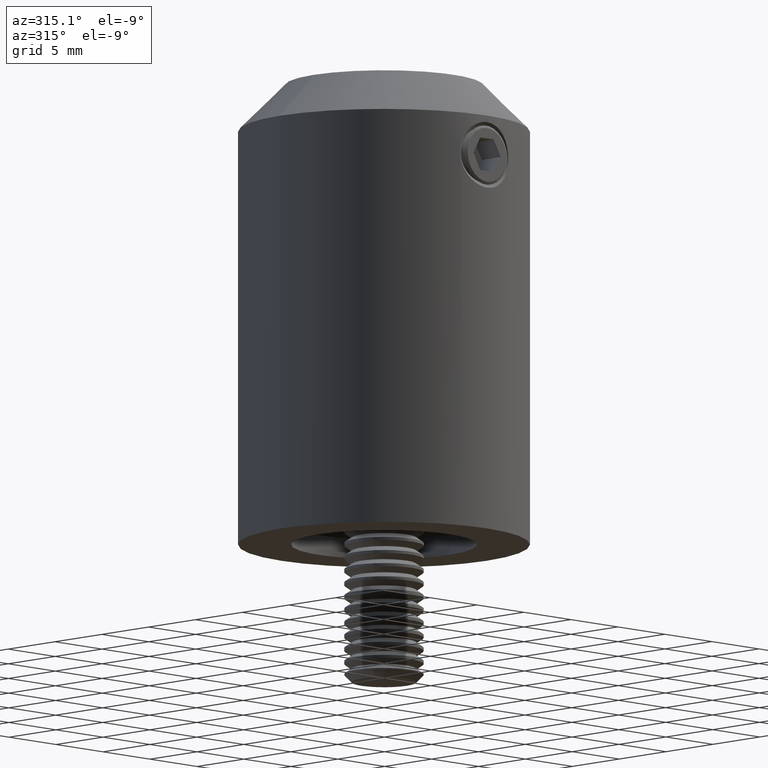
[diagram: clean part render]
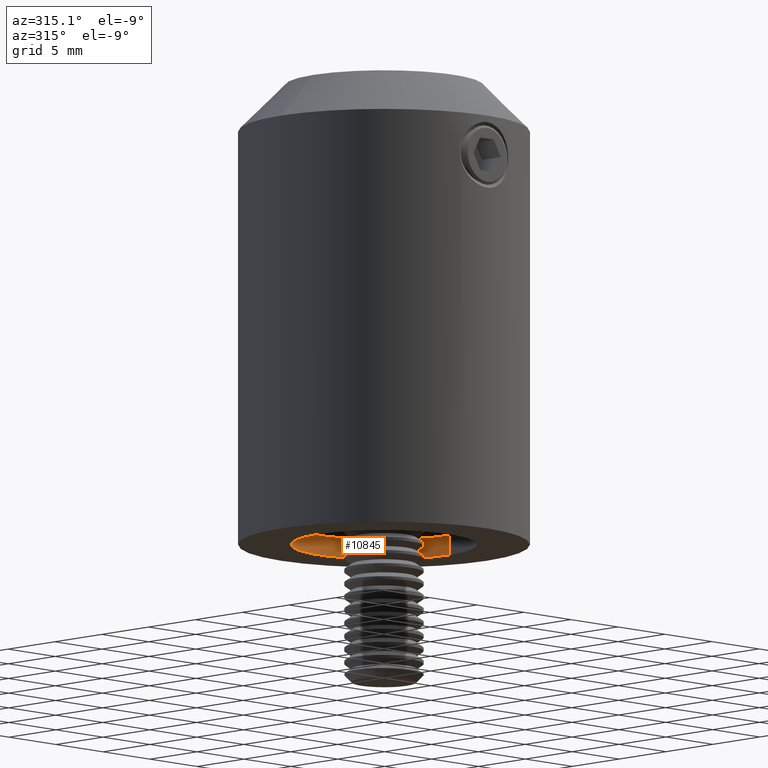
[diagram: same view with one face highlighted and labeled with its STEP entity id]
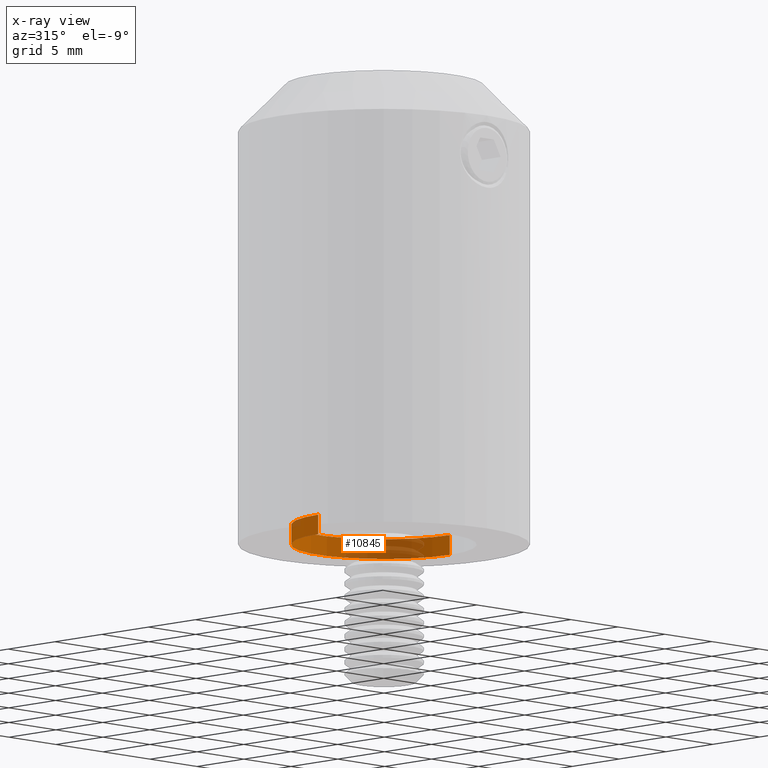
[diagram: x-ray of the same camera — body ghosted, the highlighted face saturated]
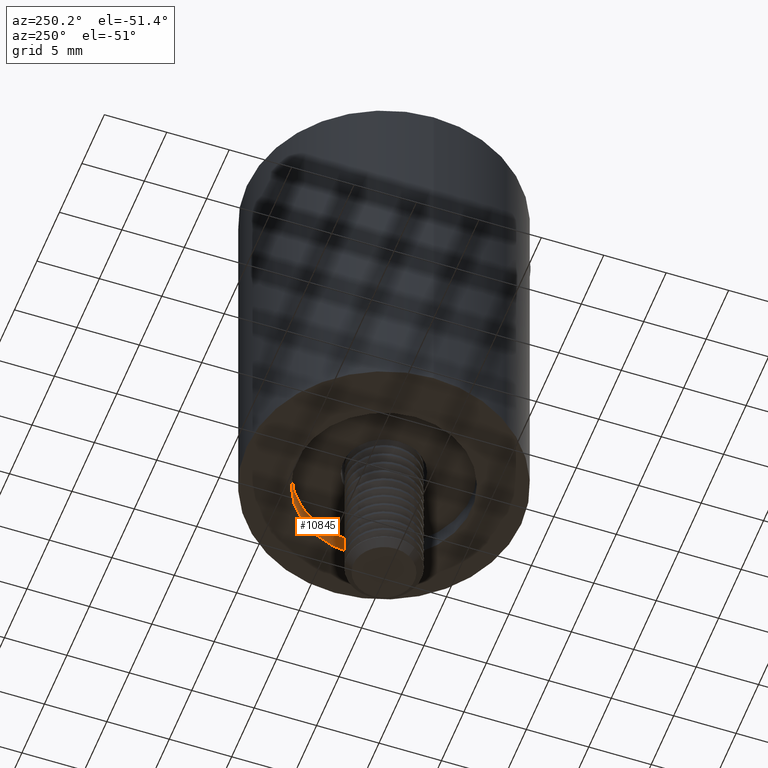
[diagram: same view with one face highlighted and labeled with its STEP entity id]
A machine part, auxiliary view. The second image highlights one B-rep face of the part: STEP entity #10845.
The next image is the same camera in x-ray: the body ghosted, the highlighted face saturated — about 44% of this face is hidden behind the body in this view.
A second angle (auxiliary view) of the same face is appended — the face is thin or edge-on in the first view.
In plain terms, the highlighted cylindrical surface (partial cylindrical patch) has radius 7 mm, axis along (-0, -0, -1).
Its self-contained STEP definition (entity closure, byte-faithful):
#160 = DIRECTION ( 'NONE',  ( -1.000000000000000000, 0.000000000000000000, 0.000000000000000000 ) ) ;
#490 = CARTESIAN_POINT ( 'NONE',  ( -6.999999999999999112, 0.000000000000000000, 0.000000000000000000 ) ) ;
#756 = DIRECTION ( 'NONE',  ( -1.000000000000000000, 0.000000000000000000, 0.000000000000000000 ) ) ;
#815 = LINE ( 'NONE', #490, #1590 ) ;
#1234 = VERTEX_POINT ( 'NONE', #6656 ) ;
#1418 = VERTEX_POINT ( 'NONE', #16991 ) ;
#1590 = VECTOR ( 'NONE', #15844, 1000.000000000000000 ) ;
#2092 = CARTESIAN_POINT ( 'NONE',  ( -6.999999999999999112, 0.000000000000000000, 1.500000000000000000 ) ) ;
#2627 = DIRECTION ( 'NONE',  ( -1.000000000000000000, 0.000000000000000000, 0.000000000000000000 ) ) ;
#3837 = CIRCLE ( 'NONE', #10111, 6.999999999999999112 ) ;
#4162 = CARTESIAN_POINT ( 'NONE',  ( 6.999999999999999112, 8.572527594031472204E-16, 0.000000000000000000 ) ) ;
#4493 = EDGE_CURVE ( 'NONE', #14744, #6488, #20904, .T. ) ;
#6299 = LINE ( 'NONE', #4162, #15289 ) ;
#6488 = VERTEX_POINT ( 'NONE', #12768 ) ;
#6656 = CARTESIAN_POINT ( 'NONE',  ( -6.999999999999999112, 0.000000000000000000, 0.000000000000000000 ) ) ;
#7423 = ORIENTED_EDGE ( 'NONE', *, *, #4493, .F. ) ;
#7693 = DIRECTION ( 'NONE',  ( -0.000000000000000000, -0.000000000000000000, -1.000000000000000000 ) ) ;
#7893 = EDGE_CURVE ( 'NONE', #1234, #1418, #3837, .T. ) ;
#8941 = AXIS2_PLACEMENT_3D ( 'NONE', #14248, #17611, #2627 ) ;
#10111 = AXIS2_PLACEMENT_3D ( 'NONE', #18910, #20405, #160 ) ;
#10845 = ADVANCED_FACE ( 'NONE', ( #11468 ), #13022, .F. ) ;
#11468 = FACE_OUTER_BOUND ( 'NONE', #19483, .T. ) ;
#12614 = ORIENTED_EDGE ( 'NONE', *, *, #12682, .T. ) ;
#12682 = EDGE_CURVE ( 'NONE', #14744, #1234, #815, .T. ) ;
#12768 = CARTESIAN_POINT ( 'NONE',  ( 6.999999999999999112, 8.572527594031472204E-16, 1.500000000000000000 ) ) ;
#13022 = CYLINDRICAL_SURFACE ( 'NONE', #19095, 6.999999999999999112 ) ;
#14248 = CARTESIAN_POINT ( 'NONE',  ( 0.000000000000000000, 0.000000000000000000, 1.500000000000000000 ) ) ;
#14744 = VERTEX_POINT ( 'NONE', #2092 ) ;
#14913 = EDGE_CURVE ( 'NONE', #6488, #1418, #6299, .T. ) ;
#15289 = VECTOR ( 'NONE', #17730, 1000.000000000000000 ) ;
#15844 = DIRECTION ( 'NONE',  ( -0.000000000000000000, -0.000000000000000000, -1.000000000000000000 ) ) ;
#16163 = CARTESIAN_POINT ( 'NONE',  ( 0.000000000000000000, 0.000000000000000000, 0.000000000000000000 ) ) ;
#16991 = CARTESIAN_POINT ( 'NONE',  ( 6.999999999999999112, 8.572527594031472204E-16, 0.000000000000000000 ) ) ;
#17118 = ORIENTED_EDGE ( 'NONE', *, *, #14913, .F. ) ;
#17344 = ORIENTED_EDGE ( 'NONE', *, *, #7893, .T. ) ;
#17611 = DIRECTION ( 'NONE',  ( -0.000000000000000000, -0.000000000000000000, -1.000000000000000000 ) ) ;
#17730 = DIRECTION ( 'NONE',  ( -0.000000000000000000, -0.000000000000000000, -1.000000000000000000 ) ) ;
#18910 = CARTESIAN_POINT ( 'NONE',  ( 0.000000000000000000, 0.000000000000000000, 0.000000000000000000 ) ) ;
#19095 = AXIS2_PLACEMENT_3D ( 'NONE', #16163, #7693, #756 ) ;
#19483 = EDGE_LOOP ( 'NONE', ( #17118, #7423, #12614, #17344 ) ) ;
#20405 = DIRECTION ( 'NONE',  ( -0.000000000000000000, -0.000000000000000000, -1.000000000000000000 ) ) ;
#20904 = CIRCLE ( 'NONE', #8941, 6.999999999999999112 ) ;